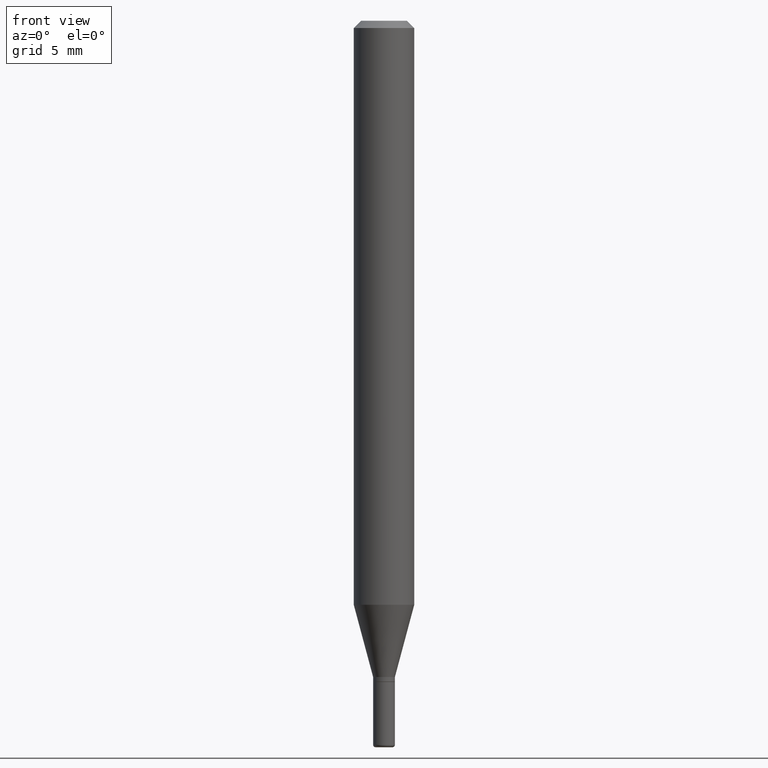
[diagram: clean part render]
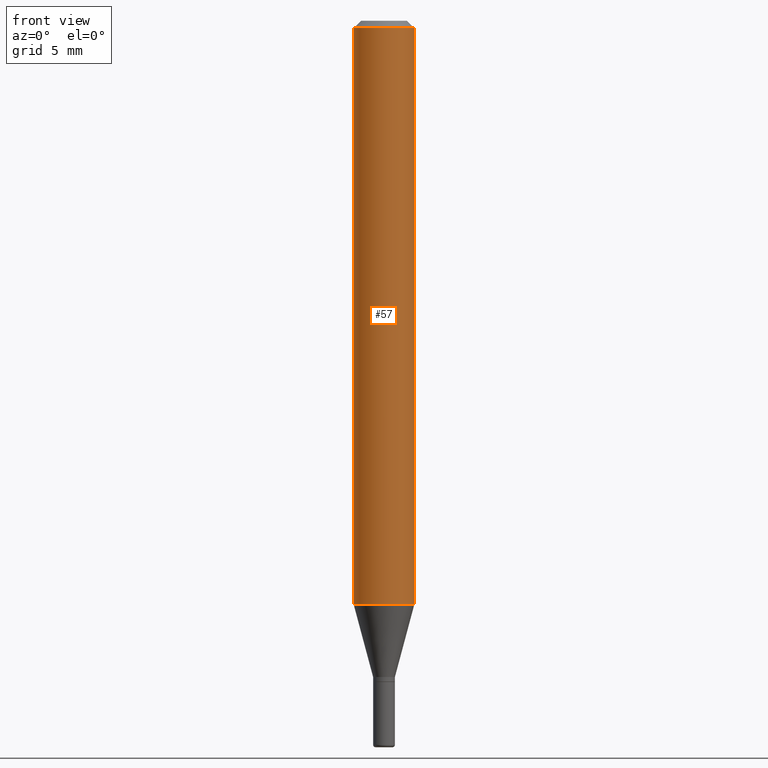
[diagram: same view with one face highlighted and labeled with its STEP entity id]
A machine part, front view. The second image highlights one B-rep face of the part: STEP entity #57.
In plain terms, the highlighted cylindrical surface (edge-blend (fillet) strip) has radius 1.5875 mm, axis along (-0, 0, 1).
Its self-contained STEP definition (entity closure, byte-faithful):
#23 = AXIS2_PLACEMENT_3D ( 'NONE', #250, #400, #41 ) ;
#41 = DIRECTION ( 'NONE',  ( 1.000000000000000000, -6.982962677686266711E-15, 0.000000000000000000 ) ) ;
#46 = AXIS2_PLACEMENT_3D ( 'NONE', #123, #326, #253 ) ;
#57 = ADVANCED_FACE ( 'NONE', ( #135 ), #102, .T. ) ;
#58 = DIRECTION ( 'NONE',  ( -2.445468806185136877E-29, 3.491481338843145188E-15, 1.000000000000000000 ) ) ;
#69 = ORIENTED_EDGE ( 'NONE', *, *, #262, .F. ) ;
#70 = VECTOR ( 'NONE', #169, 39.37007874015748143 ) ;
#74 = EDGE_CURVE ( 'NONE', #507, #464, #415, .T. ) ;
#90 = CARTESIAN_POINT ( 'NONE',  ( -0.06250000000000000000, -1.686967792252668322E-15, -0.01499999999999970281 ) ) ;
#102 = CYLINDRICAL_SURFACE ( 'NONE', #227, 0.06250000000000000000 ) ;
#105 = CARTESIAN_POINT ( 'NONE',  ( 0.000000000000000000, 0.000000000000000000, 0.000000000000000000 ) ) ;
#122 = CIRCLE ( 'NONE', #23, 0.06250000000000000000 ) ;
#123 = CARTESIAN_POINT ( 'NONE',  ( 2.948545679060552191E-29, -4.209741784122815192E-15, -1.205717967697245596 ) ) ;
#133 = CARTESIAN_POINT ( 'NONE',  ( 0.06250000000000000000, -4.364351673553916694E-16, 3.047610484872459871E-30 ) ) ;
#135 = FACE_OUTER_BOUND ( 'NONE', #503, .T. ) ;
#168 = CARTESIAN_POINT ( 'NONE',  ( -0.06250000000000000000, 4.440892098500626162E-16, -3.074334431409316114E-30 ) ) ;
#169 = DIRECTION ( 'NONE',  ( -2.445468806185136877E-29, 3.491481338843145188E-15, 1.000000000000000000 ) ) ;
#186 = VERTEX_POINT ( 'NONE', #402 ) ;
#195 = ORIENTED_EDGE ( 'NONE', *, *, #74, .F. ) ;
#227 = AXIS2_PLACEMENT_3D ( 'NONE', #105, #428, #385 ) ;
#233 = ORIENTED_EDGE ( 'NONE', *, *, #367, .T. ) ;
#249 = VERTEX_POINT ( 'NONE', #324 ) ;
#250 = CARTESIAN_POINT ( 'NONE',  ( 3.668203209277632395E-31, -5.237222008264614861E-17, -0.01499999999999970281 ) ) ;
#253 = DIRECTION ( 'NONE',  ( 1.000000000000000000, -6.982962677686270655E-15, 0.000000000000000000 ) ) ;
#262 = EDGE_CURVE ( 'NONE', #464, #186, #122, .T. ) ;
#269 = EDGE_CURVE ( 'NONE', #507, #249, #333, .T. ) ;
#324 = CARTESIAN_POINT ( 'NONE',  ( 0.06250000000000000000, -4.646176951478207651E-15, -1.205717967697245596 ) ) ;
#326 = DIRECTION ( 'NONE',  ( -2.445468806185136597E-29, 3.491481338843145583E-15, 1.000000000000000000 ) ) ;
#333 = CIRCLE ( 'NONE', #46, 0.06250000000000000000 ) ;
#367 = EDGE_CURVE ( 'NONE', #249, #186, #410, .T. ) ;
#368 = VECTOR ( 'NONE', #58, 39.37007874015748143 ) ;
#385 = DIRECTION ( 'NONE',  ( 1.000000000000000000, -6.982962677686266711E-15, 4.876176775795935793E-29 ) ) ;
#400 = DIRECTION ( 'NONE',  ( -2.445468806185136597E-29, 3.491481338843145583E-15, 1.000000000000000000 ) ) ;
#402 = CARTESIAN_POINT ( 'NONE',  ( 0.06250000000000000000, -4.888073874380378612E-16, -0.01499999999999970281 ) ) ;
#410 = LINE ( 'NONE', #133, #70 ) ;
#415 = LINE ( 'NONE', #168, #368 ) ;
#428 = DIRECTION ( 'NONE',  ( -2.445468806185136597E-29, 3.491481338843145583E-15, 1.000000000000000000 ) ) ;
#462 = ORIENTED_EDGE ( 'NONE', *, *, #269, .T. ) ;
#464 = VERTEX_POINT ( 'NONE', #90 ) ;
#498 = CARTESIAN_POINT ( 'NONE',  ( -0.06250000000000000000, -3.765652574272752576E-15, -1.205717967697245596 ) ) ;
#503 = EDGE_LOOP ( 'NONE', ( #195, #462, #233, #69 ) ) ;
#507 = VERTEX_POINT ( 'NONE', #498 ) ;